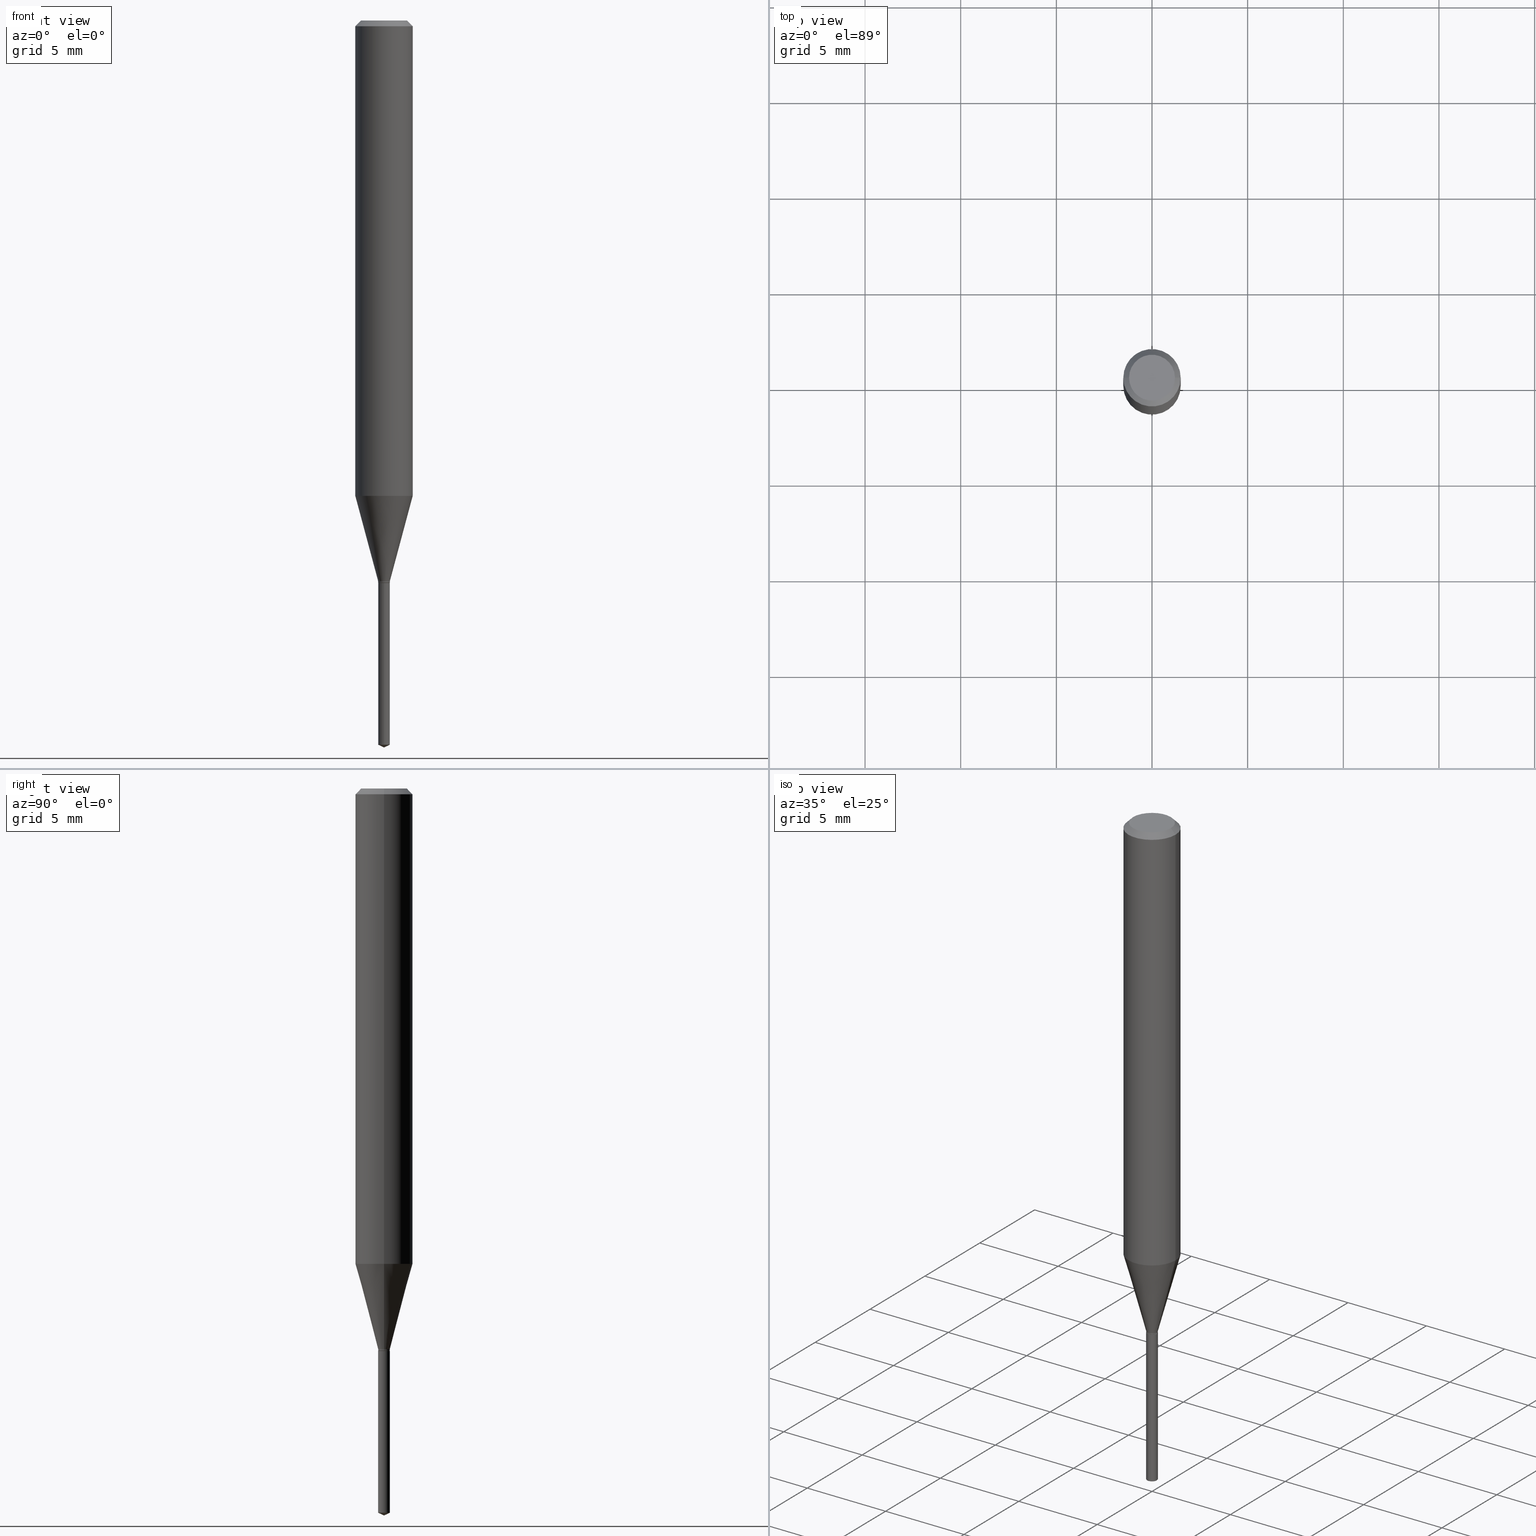
[diagram: canonical four-view strip — front | top / right | iso, engineering-drawing reading convention]
A machine part, canonical four-view strip (front | top / right | iso — engineering-drawing reading convention). The complete STEP part file that produces these views, byte-faithful:
ISO-10303-21;
HEADER;
FILE_DESCRIPTION (( 'STEP AP203' ),
    '1' );
FILE_NAME ('07436.STEP',
    '2024-04-23T21:25:28',
    ( '' ),
    ( '' ),
    'SwSTEP 2.0',
    'SolidWorks 2023',
    '' );
FILE_SCHEMA (( 'CONFIG_CONTROL_DESIGN' ));
ENDSEC;

DATA;
#1 = EDGE_LOOP ( 'NONE', ( #397, #476, #358, #469 ) ) ;
#2 = DIRECTION ( 'NONE',  ( 1.000000000000000000, -6.982962677686266711E-15, 4.876176775795935232E-29 ) ) ;
#3 = ORIENTED_EDGE ( 'NONE', *, *, #89, .T. ) ;
#4 = CYLINDRICAL_SURFACE ( 'NONE', #71, 0.01200000000000000025 ) ;
#5 = PLANE ( 'NONE',  #312 ) ;
#6 = CARTESIAN_POINT ( 'NONE',  ( -0.04724000000000000421, 3.504923541997677355E-16, -3.380025165670481712E-19 ) ) ;
#7 = CIRCLE ( 'NONE', #350, 0.01200000000000000372 ) ;
#8 = ORGANIZATION ( 'UNSPECIFIED', 'UNSPECIFIED', '' ) ;
#9 = FACE_OUTER_BOUND ( 'NONE', #143, .T. ) ;
#10 = EDGE_LOOP ( 'NONE', ( #139, #145, #66, #182 ) ) ;
#11 = EDGE_CURVE ( 'NONE', #386, #303, #367, .T. ) ;
#12 = DIRECTION ( 'NONE',  ( -0.7071067811865218156, 7.493145998870261075E-15, 0.7071067811865732189 ) ) ;
#13 = LINE ( 'NONE', #284, #457 ) ;
#14 = ORIENTED_EDGE ( 'NONE', *, *, #250, .F. ) ;
#15 = CC_DESIGN_PERSON_AND_ORGANIZATION_ASSIGNMENT ( #269, #197, ( #140 ) ) ;
#16 = DIRECTION ( 'NONE',  ( -2.436895557736890355E-29, 3.503758718580032420E-15, 1.000000000000000000 ) ) ;
#17 = DIRECTION ( 'NONE',  ( -2.445468806185136877E-29, 3.491481338843145188E-15, 1.000000000000000000 ) ) ;
#18 = VERTEX_POINT ( 'NONE', #335 ) ;
#19 = EDGE_CURVE ( 'NONE', #256, #289, #266, .T. ) ;
#20 = ORIENTED_EDGE ( 'NONE', *, *, #65, .F. ) ;
#21 = CC_DESIGN_DATE_AND_TIME_ASSIGNMENT ( #306, #86, ( #140 ) ) ;
#22 = DIRECTION ( 'NONE',  ( 2.445468806185136597E-29, -3.491481338843145583E-15, -1.000000000000000000 ) ) ;
#23 = DIRECTION ( 'NONE',  ( -6.982962677686265922E-15, -1.000000000000000000, 0.000000000000000000 ) ) ;
#24 = DIRECTION ( 'NONE',  ( 0.000000000000000000, 0.000000000000000000, 1.000000000000000000 ) ) ;
#25 = CARTESIAN_POINT ( 'NONE',  ( -0.01200000000000000025, 8.526512829121202408E-17, -5.902722108305887001E-31 ) ) ;
#26 = LINE ( 'NONE', #333, #141 ) ;
#27 = ADVANCED_FACE ( 'NONE', ( #108 ), #302, .F. ) ;
#28 = DIRECTION ( 'NONE',  ( -2.445468806185136597E-29, 3.491481338843145583E-15, 1.000000000000000000 ) ) ;
#29 = APPLICATION_PROTOCOL_DEFINITION ( 'international standard', 'config_control_design', 1994, #377 ) ;
#30 = AXIS2_PLACEMENT_3D ( 'NONE', #85, #238, #212 ) ;
#31 = CARTESIAN_POINT ( 'NONE',  ( 3.645839443930160666E-29, -5.241973418867586655E-15, -1.496099999999999985 ) ) ;
#32 = CARTESIAN_POINT ( 'NONE',  ( -8.379555213220689077E-17, -0.01200000000000404389, -1.157499999999999973 ) ) ;
#33 = FACE_OUTER_BOUND ( 'NONE', #91, .T. ) ;
#34 = DATE_AND_TIME ( #228, #405 ) ;
#35 = CARTESIAN_POINT ( 'NONE',  ( 2.888098660104664642E-31, -4.123439461173780879E-17, -0.01181000000000007565 ) ) ;
#36 = DIRECTION ( 'NONE',  ( -2.445468806185136597E-29, 3.491481338843145583E-15, 1.000000000000000000 ) ) ;
#37 = CARTESIAN_POINT ( 'NONE',  ( 8.526512829124853355E-17, 0.01199999999999595661, -1.157499999999999973 ) ) ;
#38 = CALENDAR_DATE ( 2024, 23, 4 ) ;
#39 = EDGE_CURVE ( 'NONE', #428, #256, #53, .T. ) ;
#40 = VECTOR ( 'NONE', #144, 39.37007874015748143 ) ;
#41 = AXIS2_PLACEMENT_3D ( 'NONE', #336, #482, #383 ) ;
#42 = DIRECTION ( 'NONE',  ( 1.000000000000000000, -6.982962677686247778E-15, 0.000000000000000000 ) ) ;
#43 = EDGE_LOOP ( 'NONE', ( #259, #425 ) ) ;
#44 = DIRECTION ( 'NONE',  ( 1.000000000000000000, -6.982962677686265133E-15, 0.000000000000000000 ) ) ;
#45 = DIRECTION ( 'NONE',  ( -2.445468806185136597E-29, 3.491481338843145583E-15, 1.000000000000000000 ) ) ;
#46 = ORIENTED_EDGE ( 'NONE', *, *, #250, .T. ) ;
#47 = DIRECTION ( 'NONE',  ( 2.438088387897960049E-29, -3.491481338843145188E-15, -1.000000000000000000 ) ) ;
#48 = CARTESIAN_POINT ( 'NONE',  ( -9.228500701063235563E-28, 1.327154942851870051E-13, 37.87397874015748300 ) ) ;
#49 = CIRCLE ( 'NONE', #411, 0.04724000000000000421 ) ;
#50 = ORIENTED_EDGE ( 'NONE', *, *, #217, .F. ) ;
#51 = VECTOR ( 'NONE', #100, 39.37007874015748143 ) ;
#52 = FACE_OUTER_BOUND ( 'NONE', #401, .T. ) ;
#53 = LINE ( 'NONE', #209, #273 ) ;
#54 = ORIENTED_EDGE ( 'NONE', *, *, #339, .F. ) ;
#55 = CARTESIAN_POINT ( 'NONE',  ( 2.830630143159295633E-29, -4.041389649710940900E-15, -1.157499999999999973 ) ) ;
#56 = DIRECTION ( 'NONE',  ( 1.000000000000000000, -6.982962677686266711E-15, 4.876176775795936353E-29 ) ) ;
#57 = VERTEX_POINT ( 'NONE', #6 ) ;
#58 = ADVANCED_FACE ( 'NONE', ( #309 ), #92, .T. ) ;
#59 = DIRECTION ( 'NONE',  ( 1.000000000000000000, -6.982962677686247778E-15, 0.000000000000000000 ) ) ;
#60 = AXIS2_PLACEMENT_3D ( 'NONE', #48, #240, #314 ) ;
#61 = CC_DESIGN_APPROVAL ( #342, ( #313 ) ) ;
#62 = CARTESIAN_POINT ( 'NONE',  ( 2.830630143159295633E-29, -4.041389649710940900E-15, -1.157499999999999973 ) ) ;
#63 = DIRECTION ( 'NONE',  ( 0.7071067811865218156, -2.468850131081987665E-15, 0.7071067811865732189 ) ) ;
#64 = CARTESIAN_POINT ( 'NONE',  ( 2.830630143159295633E-29, -4.041389649710940900E-15, -1.157499999999999973 ) ) ;
#65 = EDGE_CURVE ( 'NONE', #241, #428, #440, .T. ) ;
#66 = ORIENTED_EDGE ( 'NONE', *, *, #301, .T. ) ;
#67 = DIRECTION ( 'NONE',  ( 0.2588190451025213501, 1.565188264969621968E-15, 0.9659258262890682012 ) ) ;
#68 = CARTESIAN_POINT ( 'NONE',  ( 3.642126862280647887E-29, -5.208156397548526055E-15, -1.490504308102140074 ) ) ;
#69 = VECTOR ( 'NONE', #186, 39.37007874015748143 ) ;
#70 = PERSON_AND_ORGANIZATION ( #262, #8 ) ;
#71 = AXIS2_PLACEMENT_3D ( 'NONE', #437, #345, #400 ) ;
#72 = DIRECTION ( 'NONE',  ( 1.000000000000000000, -6.982962677686251722E-15, 0.000000000000000000 ) ) ;
#73 = DIRECTION ( 'NONE',  ( -2.436895557736890355E-29, 3.503758718580032420E-15, 1.000000000000000000 ) ) ;
#74 = CARTESIAN_POINT ( 'NONE',  ( 2.829407408756202832E-29, -4.039643909041518608E-15, -1.156999999999999806 ) ) ;
#75 = PERSON_AND_ORGANIZATION_ROLE ( 'classification_officer' ) ;
#76 = ADVANCED_FACE ( 'NONE', ( #9 ), #347, .T. ) ;
#77 = CALENDAR_DATE ( 2024, 23, 4 ) ;
#78 = AXIS2_PLACEMENT_3D ( 'NONE', #159, #203, #463 ) ;
#79 = AXIS2_PLACEMENT_3D ( 'NONE', #64, #28, #373 ) ;
#80 = VECTOR ( 'NONE', #459, 39.37007874015747433 ) ;
#81 = CC_DESIGN_PERSON_AND_ORGANIZATION_ASSIGNMENT ( #478, #75, ( #341 ) ) ;
#82 = CARTESIAN_POINT ( 'NONE',  ( 0.01200000000000000025, -4.112615869023340613E-15, -1.153899999999999926 ) ) ;
#83 = VECTOR ( 'NONE', #369, 39.37007874015748854 ) ;
#84 = ORIENTED_EDGE ( 'NONE', *, *, #39, .F. ) ;
#85 = CARTESIAN_POINT ( 'NONE',  ( 2.821826455457028920E-29, -4.028820316891105286E-15, -1.153899999999999926 ) ) ;
#86 = DATE_TIME_ROLE ( 'creation_date' ) ;
#87 = DIRECTION ( 'NONE',  ( -2.445468806185136597E-29, 3.491481338843145583E-15, 1.000000000000000000 ) ) ;
#88 = ORIENTED_EDGE ( 'NONE', *, *, #429, .T. ) ;
#89 = EDGE_CURVE ( 'NONE', #207, #442, #366, .T. ) ;
#90 = CARTESIAN_POINT ( 'NONE',  ( 8.526512829124033679E-17, 0.01199999999999596008, -1.157499999999999973 ) ) ;
#91 = EDGE_LOOP ( 'NONE', ( #311, #46, #215, #54 ) ) ;
#92 = CONICAL_SURFACE ( 'NONE', #60, 84.42940631927679362, 1.134464013796327109 ) ;
#93 = VERTEX_POINT ( 'NONE', #200 ) ;
#94 = DIRECTION ( 'NONE',  ( -1.000000000000000000, 6.982962677686265922E-15, -4.876176775795935793E-29 ) ) ;
#95 = CYLINDRICAL_SURFACE ( 'NONE', #252, 0.05905000000000006771 ) ;
#96 = ORIENTED_EDGE ( 'NONE', *, *, #114, .T. ) ;
#97 = CARTESIAN_POINT ( 'NONE',  ( 2.830630143159295633E-29, -4.041389649710940900E-15, -1.157499999999999973 ) ) ;
#98 = ORIENTED_EDGE ( 'NONE', *, *, #19, .T. ) ;
#99 =( CONVERSION_BASED_UNIT ( 'INCH', #174 ) LENGTH_UNIT ( ) NAMED_UNIT ( #409 ) );
#100 = DIRECTION ( 'NONE',  ( -0.7071067811865452413, 2.468850131082233000E-15, -0.7071067811865497932 ) ) ;
#101 = CONICAL_SURFACE ( 'NONE', #381, 0.01200000000000000025, 0.2617993877991500740 ) ;
#102 = APPROVAL_PERSON_ORGANIZATION ( #447, #193, #362 ) ;
#103 = ORIENTED_EDGE ( 'NONE', *, *, #451, .T. ) ;
#104 = CARTESIAN_POINT ( 'NONE',  ( 2.830630143159295633E-29, -4.041389649710940900E-15, -1.157499999999999973 ) ) ;
#105 = CARTESIAN_POINT ( 'NONE',  ( 0.01200000000000000025, -4.123439461173753935E-15, -1.156999999999999806 ) ) ;
#106 = PERSON_AND_ORGANIZATION_ROLE ( 'design_owner' ) ;
#107 = CARTESIAN_POINT ( 'NONE',  ( 2.821826455457028920E-29, -4.028820316891105286E-15, -1.153899999999999926 ) ) ;
#108 = FACE_OUTER_BOUND ( 'NONE', #322, .T. ) ;
#109 = VECTOR ( 'NONE', #310, 39.37007874015748143 ) ;
#110 = CONICAL_SURFACE ( 'NONE', #384, 0.01149999999999999981, 0.7853981633974119747 ) ;
#111 = ADVANCED_FACE ( 'NONE', ( #275 ), #156, .T. ) ;
#112 = ORIENTED_EDGE ( 'NONE', *, *, #479, .T. ) ;
#113 = CALENDAR_DATE ( 2024, 23, 4 ) ;
#114 = EDGE_CURVE ( 'NONE', #442, #134, #318, .T. ) ;
#115 = AXIS2_PLACEMENT_3D ( 'NONE', #124, #281, #430 ) ;
#116 = CONICAL_SURFACE ( 'NONE', #253, 0.05904999999999999832, 0.7853981633974450594 ) ;
#117 = ORIENTED_EDGE ( 'NONE', *, *, #490, .T. ) ;
#118 = CARTESIAN_POINT ( 'NONE',  ( 2.392419274614015052E-29, -3.415740667342255864E-15, -0.9783070095038842728 ) ) ;
#119 = ORIENTED_EDGE ( 'NONE', *, *, #65, .T. ) ;
#120 = DIRECTION ( 'NONE',  ( -2.445468806185136597E-29, 3.491481338843145583E-15, 1.000000000000000000 ) ) ;
#121 = CIRCLE ( 'NONE', #263, 0.01149999999999999981 ) ;
#122 = LOCAL_TIME ( 17, 25, 28.00000000000000000, #414 ) ;
#123 = EDGE_CURVE ( 'NONE', #18, #57, #49, .T. ) ;
#124 = CARTESIAN_POINT ( 'NONE',  ( -9.228500701063235563E-28, 1.327154942851870051E-13, 37.87397874015748300 ) ) ;
#125 = ORIENTED_EDGE ( 'NONE', *, *, #323, .T. ) ;
#126 = CARTESIAN_POINT ( 'NONE',  ( -0.01200000000000000025, -3.943555188599893977E-15, -1.153899999999999926 ) ) ;
#127 = CARTESIAN_POINT ( 'NONE',  ( 0.000000000000000000, 0.000000000000000000, 0.000000000000000000 ) ) ;
#128 = ORIENTED_EDGE ( 'NONE', *, *, #114, .F. ) ;
#129 = LINE ( 'NONE', #126, #80 ) ;
#130 = EDGE_CURVE ( 'NONE', #57, #18, #448, .T. ) ;
#131 = UNCERTAINTY_MEASURE_WITH_UNIT (LENGTH_MEASURE( 1.000000000000000082E-05 ), #99, 'distance_accuracy_value', 'NONE');
#132 = DIRECTION ( 'NONE',  ( -2.445468806185136597E-29, 3.491481338843145583E-15, 1.000000000000000000 ) ) ;
#133 = VECTOR ( 'NONE', #251, 39.37007874015748143 ) ;
#134 = VERTEX_POINT ( 'NONE', #82 ) ;
#135 = AXIS2_PLACEMENT_3D ( 'NONE', #104, #218, #23 ) ;
#136 = ORIENTED_EDGE ( 'NONE', *, *, #375, .F. ) ;
#137 = PERSON_AND_ORGANIZATION_ROLE ( 'creator' ) ;
#138 = DIRECTION ( 'NONE',  ( -6.982962677686265922E-15, -1.000000000000000000, 0.000000000000000000 ) ) ;
#139 = ORIENTED_EDGE ( 'NONE', *, *, #323, .F. ) ;
#140 = PRODUCT_DEFINITION ( 'UNKNOWN', '', #313, #352 ) ;
#141 = VECTOR ( 'NONE', #67, 39.37007874015747433 ) ;
#142 = PERSON_AND_ORGANIZATION ( #262, #8 ) ;
#143 = EDGE_LOOP ( 'NONE', ( #84, #157, #390, #431 ) ) ;
#144 = DIRECTION ( 'NONE',  ( 0.7071067811865452413, -7.319954787623248157E-15, -0.7071067811865497932 ) ) ;
#145 = ORIENTED_EDGE ( 'NONE', *, *, #287, .T. ) ;
#146 = FACE_OUTER_BOUND ( 'NONE', #10, .T. ) ;
#147 = DIRECTION ( 'NONE',  ( -6.982962677686265922E-15, -1.000000000000000000, 0.000000000000000000 ) ) ;
#148 = SECURITY_CLASSIFICATION_LEVEL ( 'unclassified' ) ;
#149 = AXIS2_PLACEMENT_3D ( 'NONE', #189, #183, #334 ) ;
#150 = PERSON_AND_ORGANIZATION ( #262, #8 ) ;
#151 = EDGE_CURVE ( 'NONE', #93, #464, #195, .T. ) ;
#152 = AXIS2_PLACEMENT_3D ( 'NONE', #270, #87, #278 ) ;
#153 =( GEOMETRIC_REPRESENTATION_CONTEXT ( 3 ) GLOBAL_UNCERTAINTY_ASSIGNED_CONTEXT ( ( #131 ) ) GLOBAL_UNIT_ASSIGNED_CONTEXT ( ( #99, #485, #413 ) ) REPRESENTATION_CONTEXT ( 'NONE', 'WORKASPACE' ) );
#154 = COORDINATED_UNIVERSAL_TIME_OFFSET ( 5, 0, .BEHIND. ) ;
#155 = ADVANCED_FACE ( 'NONE', ( #395 ), #488, .T. ) ;
#156 = CYLINDRICAL_SURFACE ( 'NONE', #433, 0.01200000000000000025 ) ;
#157 = ORIENTED_EDGE ( 'NONE', *, *, #412, .T. ) ;
#158 =( LENGTH_UNIT ( ) NAMED_UNIT ( * ) SI_UNIT ( $, .METRE. ) );
#159 = CARTESIAN_POINT ( 'NONE',  ( 8.265746106709734507E-48, -1.180129479067563789E-33, -3.380025165646692144E-19 ) ) ;
#160 = AXIS2_PLACEMENT_3D ( 'NONE', #118, #247, #455 ) ;
#161 = CC_DESIGN_APPROVAL ( #193, ( #341 ) ) ;
#162 = ORIENTED_EDGE ( 'NONE', *, *, #130, .F. ) ;
#163 = FACE_OUTER_BOUND ( 'NONE', #299, .T. ) ;
#164 = CARTESIAN_POINT ( 'NONE',  ( 2.829407408756202832E-29, -4.039643909041518608E-15, -1.156999999999999806 ) ) ;
#165 = ORIENTED_EDGE ( 'NONE', *, *, #446, .F. ) ;
#166 = EDGE_CURVE ( 'NONE', #237, #408, #121, .T. ) ;
#167 = CARTESIAN_POINT ( 'NONE',  ( 2.888098660104664642E-31, -4.123439461173780879E-17, -0.01181000000000007565 ) ) ;
#168 = ORIENTED_EDGE ( 'NONE', *, *, #166, .F. ) ;
#169 = DIRECTION ( 'NONE',  ( -6.982962677686265922E-15, -1.000000000000000000, 0.000000000000000000 ) ) ;
#170 = AXIS2_PLACEMENT_3D ( 'NONE', #445, #22, #297 ) ;
#171 = ORIENTED_EDGE ( 'NONE', *, *, #206, .F. ) ;
#172 = PLANE ( 'NONE',  #196 ) ;
#173 = FACE_OUTER_BOUND ( 'NONE', #461, .T. ) ;
#174 = LENGTH_MEASURE_WITH_UNIT ( LENGTH_MEASURE( 0.02539999999999999897 ), #158 );
#175 = ORIENTED_EDGE ( 'NONE', *, *, #11, .F. ) ;
#176 = LINE ( 'NONE', #293, #51 ) ;
#177 = MANIFOLD_SOLID_BREP ( 'Body-Move/Copy2[2]', #415 ) ;
#178 = EDGE_CURVE ( 'NONE', #201, #464, #427, .T. ) ;
#179 = DIRECTION ( 'NONE',  ( -2.445468806185136597E-29, 3.491481338843145583E-15, 1.000000000000000000 ) ) ;
#180 = DIRECTION ( 'NONE',  ( 1.000000000000000000, 0.000000000000000000, 0.000000000000000000 ) ) ;
#181 = FACE_OUTER_BOUND ( 'NONE', #466, .T. ) ;
#182 = ORIENTED_EDGE ( 'NONE', *, *, #412, .F. ) ;
#183 = DIRECTION ( 'NONE',  ( -2.445468806185136597E-29, 3.491481338843145583E-15, 1.000000000000000000 ) ) ;
#184 = MANIFOLD_SOLID_BREP ( 'Body-Move/Copy2[1]', #230 ) ;
#185 = APPROVAL_STATUS ( 'not_yet_approved' ) ;
#186 = DIRECTION ( 'NONE',  ( -6.328713451373407244E-15, -0.9063077870366539335, 0.4226182617406910036 ) ) ;
#187 = EDGE_CURVE ( 'NONE', #241, #289, #13, .T. ) ;
#188 = DIRECTION ( 'NONE',  ( -2.445468806185136597E-29, 3.491481338843145583E-15, 1.000000000000000000 ) ) ;
#189 = CARTESIAN_POINT ( 'NONE',  ( 2.888098660104664642E-31, -4.123439461173780879E-17, -0.01181000000000007565 ) ) ;
#190 = DATE_AND_TIME ( #38, #382 ) ;
#191 = AXIS2_PLACEMENT_3D ( 'NONE', #283, #432, #44 ) ;
#192 = APPROVAL ( #185, 'UNSPECIFIED' ) ;
#193 = APPROVAL ( #327, 'UNSPECIFIED' ) ;
#194 = COORDINATED_UNIVERSAL_TIME_OFFSET ( 5, 0, .BEHIND. ) ;
#195 = CIRCLE ( 'NONE', #474, 0.01200000000000000025 ) ;
#196 = AXIS2_PLACEMENT_3D ( 'NONE', #242, #47, #94 ) ;
#197 = PERSON_AND_ORGANIZATION_ROLE ( 'creator' ) ;
#198 = ADVANCED_FACE ( 'NONE', ( #435 ), #95, .T. ) ;
#199 = APPLICATION_CONTEXT ( 'configuration controlled 3d designs of mechanical parts and assemblies' ) ;
#200 = CARTESIAN_POINT ( 'NONE',  ( -8.379555213220687845E-17, -0.01200000000000404216, -1.157499999999999973 ) ) ;
#201 = VERTEX_POINT ( 'NONE', #407 ) ;
#202 = CARTESIAN_POINT ( 'NONE',  ( 3.645839443930160666E-29, -5.241973418867586655E-15, -1.496099999999999985 ) ) ;
#203 = DIRECTION ( 'NONE',  ( -2.445468806185136597E-29, 3.491481338843145583E-15, 1.000000000000000000 ) ) ;
#204 = ORIENTED_EDGE ( 'NONE', *, *, #187, .F. ) ;
#205 = AXIS2_PLACEMENT_3D ( 'NONE', #55, #16, #169 ) ;
#206 = EDGE_CURVE ( 'NONE', #18, #289, #410, .T. ) ;
#207 = VERTEX_POINT ( 'NONE', #438 ) ;
#208 = LINE ( 'NONE', #317, #458 ) ;
#209 = CARTESIAN_POINT ( 'NONE',  ( -0.05905000000000006771, 4.195754854663396409E-16, -2.904631170795525045E-30 ) ) ;
#210 = ORIENTED_EDGE ( 'NONE', *, *, #39, .T. ) ;
#211 = EDGE_LOOP ( 'NONE', ( #119, #210, #392, #204 ) ) ;
#212 = DIRECTION ( 'NONE',  ( 1.000000000000000000, -6.982962677686251722E-15, 0.000000000000000000 ) ) ;
#213 = CARTESIAN_POINT ( 'NONE',  ( 0.05904999999999999832, -4.463468013801466955E-16, -0.01181000000000007565 ) ) ;
#214 = CONICAL_SURFACE ( 'NONE', #170, 0.05904999999999999832, 0.7853981633974450594 ) ;
#215 = ORIENTED_EDGE ( 'NONE', *, *, #307, .T. ) ;
#216 = AXIS2_PLACEMENT_3D ( 'NONE', #363, #24, #180 ) ;
#217 = EDGE_CURVE ( 'NONE', #207, #473, #255, .T. ) ;
#218 = DIRECTION ( 'NONE',  ( -2.436895557736890355E-29, 3.503758718580032420E-15, 1.000000000000000000 ) ) ;
#219 = ORIENTED_EDGE ( 'NONE', *, *, #89, .F. ) ;
#220 = CARTESIAN_POINT ( 'NONE',  ( -8.379555213219876797E-17, -0.01200000000000520789, -1.490504308102140074 ) ) ;
#221 = ADVANCED_FACE ( 'NONE', ( #173 ), #214, .T. ) ;
#222 = CARTESIAN_POINT ( 'NONE',  ( -0.01200000000000000025, -3.948966984675101032E-15, -1.153899999999999926 ) ) ;
#223 = LOCAL_TIME ( 17, 25, 28.00000000000000000, #194 ) ;
#224 = APPROVAL_ROLE ( '' ) ;
#225 = CYLINDRICAL_SURFACE ( 'NONE', #135, 0.01200000000000000198 ) ;
#226 = CARTESIAN_POINT ( 'NONE',  ( 2.830630143159295633E-29, -4.041389649710940900E-15, -1.157499999999999973 ) ) ;
#227 = CARTESIAN_POINT ( 'NONE',  ( 0.01149999999999999981, -4.121693720504332431E-15, -1.157499999999999973 ) ) ;
#228 = CALENDAR_DATE ( 2024, 23, 4 ) ;
#229 = PRODUCT_DEFINITION_SHAPE ( 'NONE', 'NONE',  #140 ) ;
#230 = CLOSED_SHELL ( 'NONE', ( #280, #155, #58, #487, #246 ) ) ;
#231 = DATE_AND_TIME ( #77, #122 ) ;
#232 = CC_DESIGN_PERSON_AND_ORGANIZATION_ASSIGNMENT ( #142, #106, ( #380 ) ) ;
#233 = ORIENTED_EDGE ( 'NONE', *, *, #178, .T. ) ;
#234 = ADVANCED_FACE ( 'NONE', ( #181 ), #101, .T. ) ;
#235 = CONICAL_SURFACE ( 'NONE', #79, 0.01149999999999999981, 0.7853981633974119747 ) ;
#236 = DIRECTION ( 'NONE',  ( -6.982962677686265922E-15, -1.000000000000000000, 0.000000000000000000 ) ) ;
#237 = VERTEX_POINT ( 'NONE', #371 ) ;
#238 = DIRECTION ( 'NONE',  ( -2.445468806185136597E-29, 3.491481338843145583E-15, 1.000000000000000000 ) ) ;
#239 = PERSON_AND_ORGANIZATION ( #262, #8 ) ;
#240 = DIRECTION ( 'NONE',  ( -2.436895557736890355E-29, 3.503758718580032420E-15, 1.000000000000000000 ) ) ;
#241 = VERTEX_POINT ( 'NONE', #404 ) ;
#242 = CARTESIAN_POINT ( 'NONE',  ( 4.132873053354867254E-48, -5.900647395337818946E-34, -1.690012582823346072E-19 ) ) ;
#243 = DIRECTION ( 'NONE',  ( -2.445468806185136877E-29, 3.491481338843145188E-15, 1.000000000000000000 ) ) ;
#244 = ORIENTED_EDGE ( 'NONE', *, *, #287, .F. ) ;
#245 = DIRECTION ( 'NONE',  ( -2.445468806185136597E-29, 3.491481338843145583E-15, 1.000000000000000000 ) ) ;
#246 = ADVANCED_FACE ( 'NONE', ( #328 ), #5, .F. ) ;
#247 = DIRECTION ( 'NONE',  ( -2.445468806185136597E-29, 3.491481338843145583E-15, 1.000000000000000000 ) ) ;
#248 = ORIENTED_EDGE ( 'NONE', *, *, #258, .T. ) ;
#249 = CARTESIAN_POINT ( 'NONE',  ( 0.000000000000000000, 0.000000000000000000, 0.000000000000000000 ) ) ;
#250 = EDGE_CURVE ( 'NONE', #201, #303, #7, .T. ) ;
#251 = DIRECTION ( 'NONE',  ( -2.445468806185136877E-29, 3.491481338843145188E-15, 1.000000000000000000 ) ) ;
#252 = AXIS2_PLACEMENT_3D ( 'NONE', #249, #398, #56 ) ;
#253 = AXIS2_PLACEMENT_3D ( 'NONE', #167, #326, #320 ) ;
#254 = CC_DESIGN_DATE_AND_TIME_ASSIGNMENT ( #34, #337, ( #341 ) ) ;
#255 = LINE ( 'NONE', #25, #133 ) ;
#256 = VERTEX_POINT ( 'NONE', #406 ) ;
#257 = FACE_OUTER_BOUND ( 'NONE', #319, .T. ) ;
#258 = EDGE_CURVE ( 'NONE', #408, #237, #393, .T. ) ;
#259 = ORIENTED_EDGE ( 'NONE', *, *, #130, .T. ) ;
#260 = DIRECTION ( 'NONE',  ( 2.436895557736890074E-29, -3.503758718580032420E-15, -1.000000000000000000 ) ) ;
#261 = DIRECTION ( 'NONE',  ( -2.445468806185136597E-29, 3.491481338843145583E-15, 1.000000000000000000 ) ) ;
#262 = PERSON ( 'UNSPECIFIED', 'UNSPECIFIED', 'UNSPECIFIED', ('UNSPECIFIED'), ('UNSPECIFIED'), ('UNSPECIFIED') ) ;
#263 = AXIS2_PLACEMENT_3D ( 'NONE', #385, #132, #42 ) ;
#264 = CC_DESIGN_APPROVAL ( #192, ( #140 ) ) ;
#265 = APPROVAL_STATUS ( 'not_yet_approved' ) ;
#266 = CIRCLE ( 'NONE', #304, 0.05904999999999999832 ) ;
#267 = APPROVAL_DATE_TIME ( #231, #342 ) ;
#268 = ORIENTED_EDGE ( 'NONE', *, *, #396, .F. ) ;
#269 = PERSON_AND_ORGANIZATION ( #262, #8 ) ;
#270 = CARTESIAN_POINT ( 'NONE',  ( 0.000000000000000000, 0.000000000000000000, 0.000000000000000000 ) ) ;
#271 = ORIENTED_EDGE ( 'NONE', *, *, #446, .T. ) ;
#272 = DIRECTION ( 'NONE',  ( 1.000000000000000000, -6.982962677686251722E-15, 0.000000000000000000 ) ) ;
#273 = VECTOR ( 'NONE', #17, 39.37007874015748143 ) ;
#274 = APPROVAL_PERSON_ORGANIZATION ( #239, #342, #417 ) ;
#275 = FACE_OUTER_BOUND ( 'NONE', #420, .T. ) ;
#276 = ORIENTED_EDGE ( 'NONE', *, *, #396, .T. ) ;
#277 = DIRECTION ( 'NONE',  ( -2.445468806185136597E-29, 3.491481338843145583E-15, 1.000000000000000000 ) ) ;
#278 = DIRECTION ( 'NONE',  ( 1.000000000000000000, -6.982962677686266711E-15, 4.876176775795936353E-29 ) ) ;
#279 = ORIENTED_EDGE ( 'NONE', *, *, #429, .F. ) ;
#280 = ADVANCED_FACE ( 'NONE', ( #443 ), #225, .T. ) ;
#281 = DIRECTION ( 'NONE',  ( -2.436895557736890355E-29, 3.503758718580032420E-15, 1.000000000000000000 ) ) ;
#282 = ORIENTED_EDGE ( 'NONE', *, *, #375, .T. ) ;
#283 = CARTESIAN_POINT ( 'NONE',  ( 2.392419274614015052E-29, -3.415740667342255864E-15, -0.9783070095038842728 ) ) ;
#284 = CARTESIAN_POINT ( 'NONE',  ( 0.05905000000000006771, -4.123439461173745257E-16, 2.879382386107503723E-30 ) ) ;
#285 = CIRCLE ( 'NONE', #30, 0.01200000000000000025 ) ;
#286 = EDGE_LOOP ( 'NONE', ( #439, #436, #14 ) ) ;
#287 = EDGE_CURVE ( 'NONE', #473, #134, #292, .T. ) ;
#288 = ORIENTED_EDGE ( 'NONE', *, *, #258, .F. ) ;
#289 = VERTEX_POINT ( 'NONE', #365 ) ;
#290 = EDGE_LOOP ( 'NONE', ( #175, #112, #165 ) ) ;
#291 = DIRECTION ( 'NONE',  ( 6.982962677686265922E-15, 1.000000000000000000, -3.503758718580032420E-15 ) ) ;
#292 = CIRCLE ( 'NONE', #343, 0.01200000000000000025 ) ;
#293 = CARTESIAN_POINT ( 'NONE',  ( -0.05904999999999999832, 3.711095515056362547E-16, -0.01181000000000007565 ) ) ;
#294 = DIRECTION ( 'NONE',  ( -2.445468806185136597E-29, 3.491481338843145583E-15, 1.000000000000000000 ) ) ;
#295 = CARTESIAN_POINT ( 'NONE',  ( 3.665860549465548495E-29, -5.213551284776692655E-15, -1.496099999999999985 ) ) ;
#296 = CC_DESIGN_PERSON_AND_ORGANIZATION_ASSIGNMENT ( #150, #137, ( #313 ) ) ;
#297 = DIRECTION ( 'NONE',  ( -1.000000000000000000, 6.982962677686266711E-15, 0.000000000000000000 ) ) ;
#298 = DIRECTION ( 'NONE',  ( 1.000000000000000000, -6.982962677686247778E-15, 0.000000000000000000 ) ) ;
#299 = EDGE_LOOP ( 'NONE', ( #117, #471, #268, #128 ) ) ;
#300 = CIRCLE ( 'NONE', #449, 0.01200000000000000372 ) ;
#301 = EDGE_CURVE ( 'NONE', #134, #241, #26, .T. ) ;
#302 = PLANE ( 'NONE',  #422 ) ;
#303 = VERTEX_POINT ( 'NONE', #220 ) ;
#304 = AXIS2_PLACEMENT_3D ( 'NONE', #35, #188, #480 ) ;
#305 = AXIS2_PLACEMENT_3D ( 'NONE', #74, #245, #272 ) ;
#306 = DATE_AND_TIME ( #113, #324 ) ;
#307 = EDGE_CURVE ( 'NONE', #303, #93, #368, .T. ) ;
#308 = DATE_AND_TIME ( #454, #223 ) ;
#309 = FACE_OUTER_BOUND ( 'NONE', #286, .T. ) ;
#310 = DIRECTION ( 'NONE',  ( -2.445468806185136877E-29, 3.491481338843145188E-15, 1.000000000000000000 ) ) ;
#311 = ORIENTED_EDGE ( 'NONE', *, *, #178, .F. ) ;
#312 = AXIS2_PLACEMENT_3D ( 'NONE', #226, #260, #291 ) ;
#313 = PRODUCT_DEFINITION_FORMATION_WITH_SPECIFIED_SOURCE ( 'ANY', '', #380, .NOT_KNOWN. ) ;
#314 = DIRECTION ( 'NONE',  ( -6.982962677686268288E-15, -1.000000000000000000, 3.520397390770351318E-15 ) ) ;
#315 = ORIENTED_EDGE ( 'NONE', *, *, #151, .T. ) ;
#316 = ADVANCED_FACE ( 'NONE', ( #146 ), #475, .T. ) ;
#317 = CARTESIAN_POINT ( 'NONE',  ( -0.01149999999999999981, -3.959677235098528912E-15, -1.157499999999999973 ) ) ;
#318 = LINE ( 'NONE', #321, #109 ) ;
#319 = EDGE_LOOP ( 'NONE', ( #136, #248, #88, #219 ) ) ;
#320 = DIRECTION ( 'NONE',  ( -1.000000000000000000, 6.982962677686266711E-15, 0.000000000000000000 ) ) ;
#321 = CARTESIAN_POINT ( 'NONE',  ( 0.01200000000000000025, -8.379555213223520348E-17, 5.851412130955122461E-31 ) ) ;
#322 = EDGE_LOOP ( 'NONE', ( #168, #288 ) ) ;
#323 = EDGE_CURVE ( 'NONE', #473, #428, #129, .T. ) ;
#324 = LOCAL_TIME ( 17, 25, 28.00000000000000000, #154 ) ;
#325 = EDGE_LOOP ( 'NONE', ( #271, #233, #344, #399 ) ) ;
#326 = DIRECTION ( 'NONE',  ( 2.445468806185136597E-29, -3.491481338843145583E-15, -1.000000000000000000 ) ) ;
#327 = APPROVAL_STATUS ( 'not_yet_approved' ) ;
#328 = FACE_OUTER_BOUND ( 'NONE', #332, .T. ) ;
#329 = DIRECTION ( 'NONE',  ( 1.000000000000000000, -6.982962677686251722E-15, 0.000000000000000000 ) ) ;
#330 = DIRECTION ( 'NONE',  ( -2.436895557736890355E-29, 3.503758718580032420E-15, 1.000000000000000000 ) ) ;
#331 = VECTOR ( 'NONE', #63, 39.37007874015748143 ) ;
#332 = EDGE_LOOP ( 'NONE', ( #315, #356 ) ) ;
#333 = CARTESIAN_POINT ( 'NONE',  ( 0.01200000000000000025, -4.112615869023340613E-15, -1.153899999999999926 ) ) ;
#334 = DIRECTION ( 'NONE',  ( 1.000000000000000000, -6.982962677686266711E-15, 0.000000000000000000 ) ) ;
#335 = CARTESIAN_POINT ( 'NONE',  ( 0.04724000000000000421, -3.852183633974369345E-16, -3.380025165621689721E-19 ) ) ;
#336 = CARTESIAN_POINT ( 'NONE',  ( 2.830630143159295633E-29, -4.041389649710940900E-15, -1.157499999999999973 ) ) ;
#337 = DATE_TIME_ROLE ( 'classification_date' ) ;
#338 = DIRECTION ( 'NONE',  ( 1.000000000000000000, -6.982962677686251722E-15, 0.000000000000000000 ) ) ;
#339 = EDGE_CURVE ( 'NONE', #464, #93, #486, .T. ) ;
#340 = AXIS2_PLACEMENT_3D ( 'NONE', #164, #389, #460 ) ;
#341 = SECURITY_CLASSIFICATION ( '', '', #148 ) ;
#342 = APPROVAL ( #265, 'UNSPECIFIED' ) ;
#343 = AXIS2_PLACEMENT_3D ( 'NONE', #361, #179, #329 ) ;
#344 = ORIENTED_EDGE ( 'NONE', *, *, #151, .F. ) ;
#345 = DIRECTION ( 'NONE',  ( -2.445468806185136597E-29, 3.491481338843145583E-15, 1.000000000000000000 ) ) ;
#346 = ADVANCED_FACE ( 'NONE', ( #163 ), #4, .T. ) ;
#347 = CYLINDRICAL_SURFACE ( 'NONE', #152, 0.05905000000000006771 ) ;
#348 = ORIENTED_EDGE ( 'NONE', *, *, #301, .F. ) ;
#349 = CARTESIAN_POINT ( 'NONE',  ( -0.05905000000000011628, -2.996165181875915977E-15, -0.9783070095038842728 ) ) ;
#350 = AXIS2_PLACEMENT_3D ( 'NONE', #402, #73, #138 ) ;
#351 = AXIS2_PLACEMENT_3D ( 'NONE', #62, #294, #298 ) ;
#352 = DESIGN_CONTEXT ( 'detailed design', #377, 'design' ) ;
#353 = DIRECTION ( 'NONE',  ( 1.000000000000000000, -6.982962677686265922E-15, 4.876176775795935793E-29 ) ) ;
#354 = ORIENTED_EDGE ( 'NONE', *, *, #166, .T. ) ;
#355 = DIRECTION ( 'NONE',  ( -2.436895557736890074E-29, 3.503758718580032420E-15, 1.000000000000000000 ) ) ;
#356 = ORIENTED_EDGE ( 'NONE', *, *, #339, .T. ) ;
#357 = DIRECTION ( 'NONE',  ( -2.438088387897960049E-29, 3.491481338843145188E-15, 1.000000000000000000 ) ) ;
#358 = ORIENTED_EDGE ( 'NONE', *, *, #470, .T. ) ;
#359 = FACE_OUTER_BOUND ( 'NONE', #43, .T. ) ;
#360 = CIRCLE ( 'NONE', #191, 0.05905000000000013016 ) ;
#361 = CARTESIAN_POINT ( 'NONE',  ( 2.821826455457028920E-29, -4.028820316891105286E-15, -1.153899999999999926 ) ) ;
#362 = APPROVAL_ROLE ( '' ) ;
#363 = CARTESIAN_POINT ( 'NONE',  ( 0.000000000000000000, 0.000000000000000000, 0.000000000000000000 ) ) ;
#364 = ADVANCED_FACE ( 'NONE', ( #52 ), #110, .T. ) ;
#365 = CARTESIAN_POINT ( 'NONE',  ( 0.05904999999999999832, -4.535783407291118600E-16, -0.01181000000000007565 ) ) ;
#366 = CIRCLE ( 'NONE', #340, 0.01200000000000000025 ) ;
#367 = LINE ( 'NONE', #31, #69 ) ;
#368 = LINE ( 'NONE', #32, #416 ) ;
#369 = DIRECTION ( 'NONE',  ( 6.439704144417063485E-15, 0.9063077870366568201, 0.4226182617406846753 ) ) ;
#370 = PERSON_AND_ORGANIZATION_ROLE ( 'design_supplier' ) ;
#371 = CARTESIAN_POINT ( 'NONE',  ( 0.01149999999999999981, -4.121693720504332431E-15, -1.157499999999999973 ) ) ;
#372 = CARTESIAN_POINT ( 'NONE',  ( 2.821826455457028920E-29, -4.028820316891105286E-15, -1.153899999999999926 ) ) ;
#373 = DIRECTION ( 'NONE',  ( 1.000000000000000000, -6.982962677686247778E-15, 0.000000000000000000 ) ) ;
#374 = COORDINATED_UNIVERSAL_TIME_OFFSET ( 5, 0, .BEHIND. ) ;
#375 = EDGE_CURVE ( 'NONE', #408, #207, #208, .T. ) ;
#376 = COORDINATED_UNIVERSAL_TIME_OFFSET ( 5, 0, .BEHIND. ) ;
#377 = APPLICATION_CONTEXT ( 'configuration controlled 3d designs of mechanical parts and assemblies' ) ;
#378 = MECHANICAL_CONTEXT ( 'NONE', #199, 'mechanical' ) ;
#379 = PRODUCT_RELATED_PRODUCT_CATEGORY ( 'detail', '', ( #380 ) ) ;
#380 = PRODUCT ( '07436', '07436', '', ( #378 ) ) ;
#381 = AXIS2_PLACEMENT_3D ( 'NONE', #107, #261, #72 ) ;
#382 = LOCAL_TIME ( 17, 25, 28.00000000000000000, #374 ) ;
#383 = DIRECTION ( 'NONE',  ( -6.982962677686265922E-15, -1.000000000000000000, 0.000000000000000000 ) ) ;
#384 = AXIS2_PLACEMENT_3D ( 'NONE', #97, #277, #59 ) ;
#385 = CARTESIAN_POINT ( 'NONE',  ( 2.830630143159295633E-29, -4.041389649710940900E-15, -1.157499999999999973 ) ) ;
#386 = VERTEX_POINT ( 'NONE', #202 ) ;
#387 = CARTESIAN_POINT ( 'NONE',  ( -0.01149999999999999981, -3.957028007924417711E-15, -1.157499999999999973 ) ) ;
#388 = ADVANCED_FACE ( 'NONE', ( #426 ), #116, .T. ) ;
#389 = DIRECTION ( 'NONE',  ( -2.445468806185136597E-29, 3.491481338843145583E-15, 1.000000000000000000 ) ) ;
#390 = ORIENTED_EDGE ( 'NONE', *, *, #187, .T. ) ;
#391 = CARTESIAN_POINT ( 'NONE',  ( 2.830630143159295633E-29, -4.041389649710940900E-15, -1.157499999999999973 ) ) ;
#392 = ORIENTED_EDGE ( 'NONE', *, *, #470, .F. ) ;
#393 = CIRCLE ( 'NONE', #351, 0.01149999999999999981 ) ;
#394 = CIRCLE ( 'NONE', #149, 0.05904999999999999832 ) ;
#395 = FACE_OUTER_BOUND ( 'NONE', #290, .T. ) ;
#396 = EDGE_CURVE ( 'NONE', #134, #473, #285, .T. ) ;
#397 = ORIENTED_EDGE ( 'NONE', *, *, #123, .F. ) ;
#398 = DIRECTION ( 'NONE',  ( -2.445468806185136597E-29, 3.491481338843145583E-15, 1.000000000000000000 ) ) ;
#399 = ORIENTED_EDGE ( 'NONE', *, *, #307, .F. ) ;
#400 = DIRECTION ( 'NONE',  ( 1.000000000000000000, -6.982962677686266711E-15, 4.876176775795935232E-29 ) ) ;
#401 = EDGE_LOOP ( 'NONE', ( #354, #282, #456, #279 ) ) ;
#402 = CARTESIAN_POINT ( 'NONE',  ( 3.642126862280647887E-29, -5.208156397548526055E-15, -1.490504308102140074 ) ) ;
#403 = VECTOR ( 'NONE', #355, 39.37007874015748143 ) ;
#404 = CARTESIAN_POINT ( 'NONE',  ( 0.05905000000000011628, -3.828084613459630390E-15, -0.9783070095038842728 ) ) ;
#405 = LOCAL_TIME ( 17, 25, 28.00000000000000000, #376 ) ;
#406 = CARTESIAN_POINT ( 'NONE',  ( -0.05904999999999999832, -1.308912045510656317E-15, -0.01181000000000007565 ) ) ;
#407 = CARTESIAN_POINT ( 'NONE',  ( 8.526512829124844727E-17, 0.01199999999999478914, -1.490504308102140074 ) ) ;
#408 = VERTEX_POINT ( 'NONE', #387 ) ;
#409 = DIMENSIONAL_EXPONENTS ( 1.000000000000000000, 0.000000000000000000, 0.000000000000000000, 0.000000000000000000, 0.000000000000000000, 0.000000000000000000, 0.000000000000000000 ) ;
#410 = LINE ( 'NONE', #213, #40 ) ;
#411 = AXIS2_PLACEMENT_3D ( 'NONE', #419, #120, #465 ) ;
#412 = EDGE_CURVE ( 'NONE', #428, #241, #360, .T. ) ;
#413 =( NAMED_UNIT ( * ) SI_UNIT ( $, .STERADIAN. ) SOLID_ANGLE_UNIT ( ) );
#414 = COORDINATED_UNIVERSAL_TIME_OFFSET ( 5, 0, .BEHIND. ) ;
#415 = CLOSED_SHELL ( 'NONE', ( #364, #388, #198, #234, #346, #111, #316, #76, #221, #421, #27, #452 ) ) ;
#416 = VECTOR ( 'NONE', #481, 39.37007874015748143 ) ;
#417 = APPROVAL_ROLE ( '' ) ;
#418 = ADVANCED_BREP_SHAPE_REPRESENTATION ( '07436', ( #184, #177, #216 ), #153 ) ;
#419 = CARTESIAN_POINT ( 'NONE',  ( 8.265746106709734507E-48, -1.180129479067563789E-33, -3.380025165646692144E-19 ) ) ;
#420 = EDGE_LOOP ( 'NONE', ( #50, #3, #96, #244 ) ) ;
#421 = ADVANCED_FACE ( 'NONE', ( #359 ), #172, .F. ) ;
#422 = AXIS2_PLACEMENT_3D ( 'NONE', #391, #357, #353 ) ;
#423 = CIRCLE ( 'NONE', #305, 0.01200000000000000025 ) ;
#424 = DIRECTION ( 'NONE',  ( -2.436895557736890355E-29, 3.503758718580032420E-15, 1.000000000000000000 ) ) ;
#425 = ORIENTED_EDGE ( 'NONE', *, *, #123, .T. ) ;
#426 = FACE_OUTER_BOUND ( 'NONE', #1, .T. ) ;
#427 = LINE ( 'NONE', #90, #403 ) ;
#428 = VERTEX_POINT ( 'NONE', #349 ) ;
#429 = EDGE_CURVE ( 'NONE', #237, #442, #462, .T. ) ;
#430 = DIRECTION ( 'NONE',  ( -6.982962677686268288E-15, -1.000000000000000000, 3.520397390770351318E-15 ) ) ;
#431 = ORIENTED_EDGE ( 'NONE', *, *, #19, .F. ) ;
#432 = DIRECTION ( 'NONE',  ( -2.445468806185136597E-29, 3.491481338843145583E-15, 1.000000000000000000 ) ) ;
#433 = AXIS2_PLACEMENT_3D ( 'NONE', #127, #45, #2 ) ;
#434 = CC_DESIGN_PERSON_AND_ORGANIZATION_ASSIGNMENT ( #467, #370, ( #313 ) ) ;
#435 = FACE_OUTER_BOUND ( 'NONE', #211, .T. ) ;
#436 = ORIENTED_EDGE ( 'NONE', *, *, #11, .T. ) ;
#437 = CARTESIAN_POINT ( 'NONE',  ( 0.000000000000000000, 0.000000000000000000, 0.000000000000000000 ) ) ;
#438 = CARTESIAN_POINT ( 'NONE',  ( -0.01200000000000000025, -3.948966984675101032E-15, -1.156999999999999806 ) ) ;
#439 = ORIENTED_EDGE ( 'NONE', *, *, #479, .F. ) ;
#440 = CIRCLE ( 'NONE', #160, 0.05905000000000013016 ) ;
#441 = CC_DESIGN_SECURITY_CLASSIFICATION ( #341, ( #313 ) ) ;
#442 = VERTEX_POINT ( 'NONE', #105 ) ;
#443 = FACE_OUTER_BOUND ( 'NONE', #325, .T. ) ;
#444 = APPLICATION_PROTOCOL_DEFINITION ( 'international standard', 'config_control_design', 1994, #199 ) ;
#445 = CARTESIAN_POINT ( 'NONE',  ( 2.888098660104664642E-31, -4.123439461173780879E-17, -0.01181000000000007565 ) ) ;
#446 = EDGE_CURVE ( 'NONE', #303, #201, #300, .T. ) ;
#447 = PERSON_AND_ORGANIZATION ( #262, #8 ) ;
#448 = CIRCLE ( 'NONE', #78, 0.04724000000000000421 ) ;
#449 = AXIS2_PLACEMENT_3D ( 'NONE', #68, #330, #147 ) ;
#450 = APPROVAL_DATE_TIME ( #308, #192 ) ;
#451 = EDGE_CURVE ( 'NONE', #57, #256, #176, .T. ) ;
#452 = ADVANCED_FACE ( 'NONE', ( #257 ), #235, .T. ) ;
#453 = CARTESIAN_POINT ( 'NONE',  ( 2.830630143159295633E-29, -4.041389649710940900E-15, -1.157499999999999973 ) ) ;
#454 = CALENDAR_DATE ( 2024, 23, 4 ) ;
#455 = DIRECTION ( 'NONE',  ( 1.000000000000000000, -6.982962677686265133E-15, 0.000000000000000000 ) ) ;
#456 = ORIENTED_EDGE ( 'NONE', *, *, #490, .F. ) ;
#457 = VECTOR ( 'NONE', #243, 39.37007874015748143 ) ;
#458 = VECTOR ( 'NONE', #12, 39.37007874015748143 ) ;
#459 = DIRECTION ( 'NONE',  ( -0.2588190451025213501, 5.211531920934551042E-15, 0.9659258262890682012 ) ) ;
#460 = DIRECTION ( 'NONE',  ( 1.000000000000000000, -6.982962677686251722E-15, 0.000000000000000000 ) ) ;
#461 = EDGE_LOOP ( 'NONE', ( #171, #162, #103, #98 ) ) ;
#462 = LINE ( 'NONE', #227, #331 ) ;
#463 = DIRECTION ( 'NONE',  ( 1.000000000000000000, -6.982962677686266711E-15, 4.876185090822587894E-29 ) ) ;
#464 = VERTEX_POINT ( 'NONE', #37 ) ;
#465 = DIRECTION ( 'NONE',  ( 1.000000000000000000, -6.982962677686266711E-15, 4.876185090822587894E-29 ) ) ;
#466 = EDGE_LOOP ( 'NONE', ( #276, #125, #20, #348 ) ) ;
#467 = PERSON_AND_ORGANIZATION ( #262, #8 ) ;
#468 = APPROVAL_PERSON_ORGANIZATION ( #70, #192, #224 ) ;
#469 = ORIENTED_EDGE ( 'NONE', *, *, #451, .F. ) ;
#470 = EDGE_CURVE ( 'NONE', #289, #256, #394, .T. ) ;
#471 = ORIENTED_EDGE ( 'NONE', *, *, #217, .T. ) ;
#472 = SHAPE_DEFINITION_REPRESENTATION ( #229, #418 ) ;
#473 = VERTEX_POINT ( 'NONE', #222 ) ;
#474 = AXIS2_PLACEMENT_3D ( 'NONE', #453, #424, #236 ) ;
#475 = CONICAL_SURFACE ( 'NONE', #489, 0.01200000000000000025, 0.2617993877991500740 ) ;
#476 = ORIENTED_EDGE ( 'NONE', *, *, #206, .T. ) ;
#477 = LINE ( 'NONE', #295, #83 ) ;
#478 = PERSON_AND_ORGANIZATION ( #262, #8 ) ;
#479 = EDGE_CURVE ( 'NONE', #386, #201, #477, .T. ) ;
#480 = DIRECTION ( 'NONE',  ( 1.000000000000000000, -6.982962677686266711E-15, 0.000000000000000000 ) ) ;
#481 = DIRECTION ( 'NONE',  ( -2.436895557736890074E-29, 3.503758718580032420E-15, 1.000000000000000000 ) ) ;
#482 = DIRECTION ( 'NONE',  ( -2.436895557736890355E-29, 3.503758718580032420E-15, 1.000000000000000000 ) ) ;
#483 = CYLINDRICAL_SURFACE ( 'NONE', #41, 0.01200000000000000198 ) ;
#484 = APPROVAL_DATE_TIME ( #190, #193 ) ;
#485 =( NAMED_UNIT ( * ) PLANE_ANGLE_UNIT ( ) SI_UNIT ( $, .RADIAN. ) );
#486 = CIRCLE ( 'NONE', #205, 0.01200000000000000025 ) ;
#487 = ADVANCED_FACE ( 'NONE', ( #33 ), #483, .T. ) ;
#488 = CONICAL_SURFACE ( 'NONE', #115, 84.42940631927679362, 1.134464013796327109 ) ;
#489 = AXIS2_PLACEMENT_3D ( 'NONE', #372, #36, #338 ) ;
#490 = EDGE_CURVE ( 'NONE', #442, #207, #423, .T. ) ;
ENDSEC;
END-ISO-10303-21;
